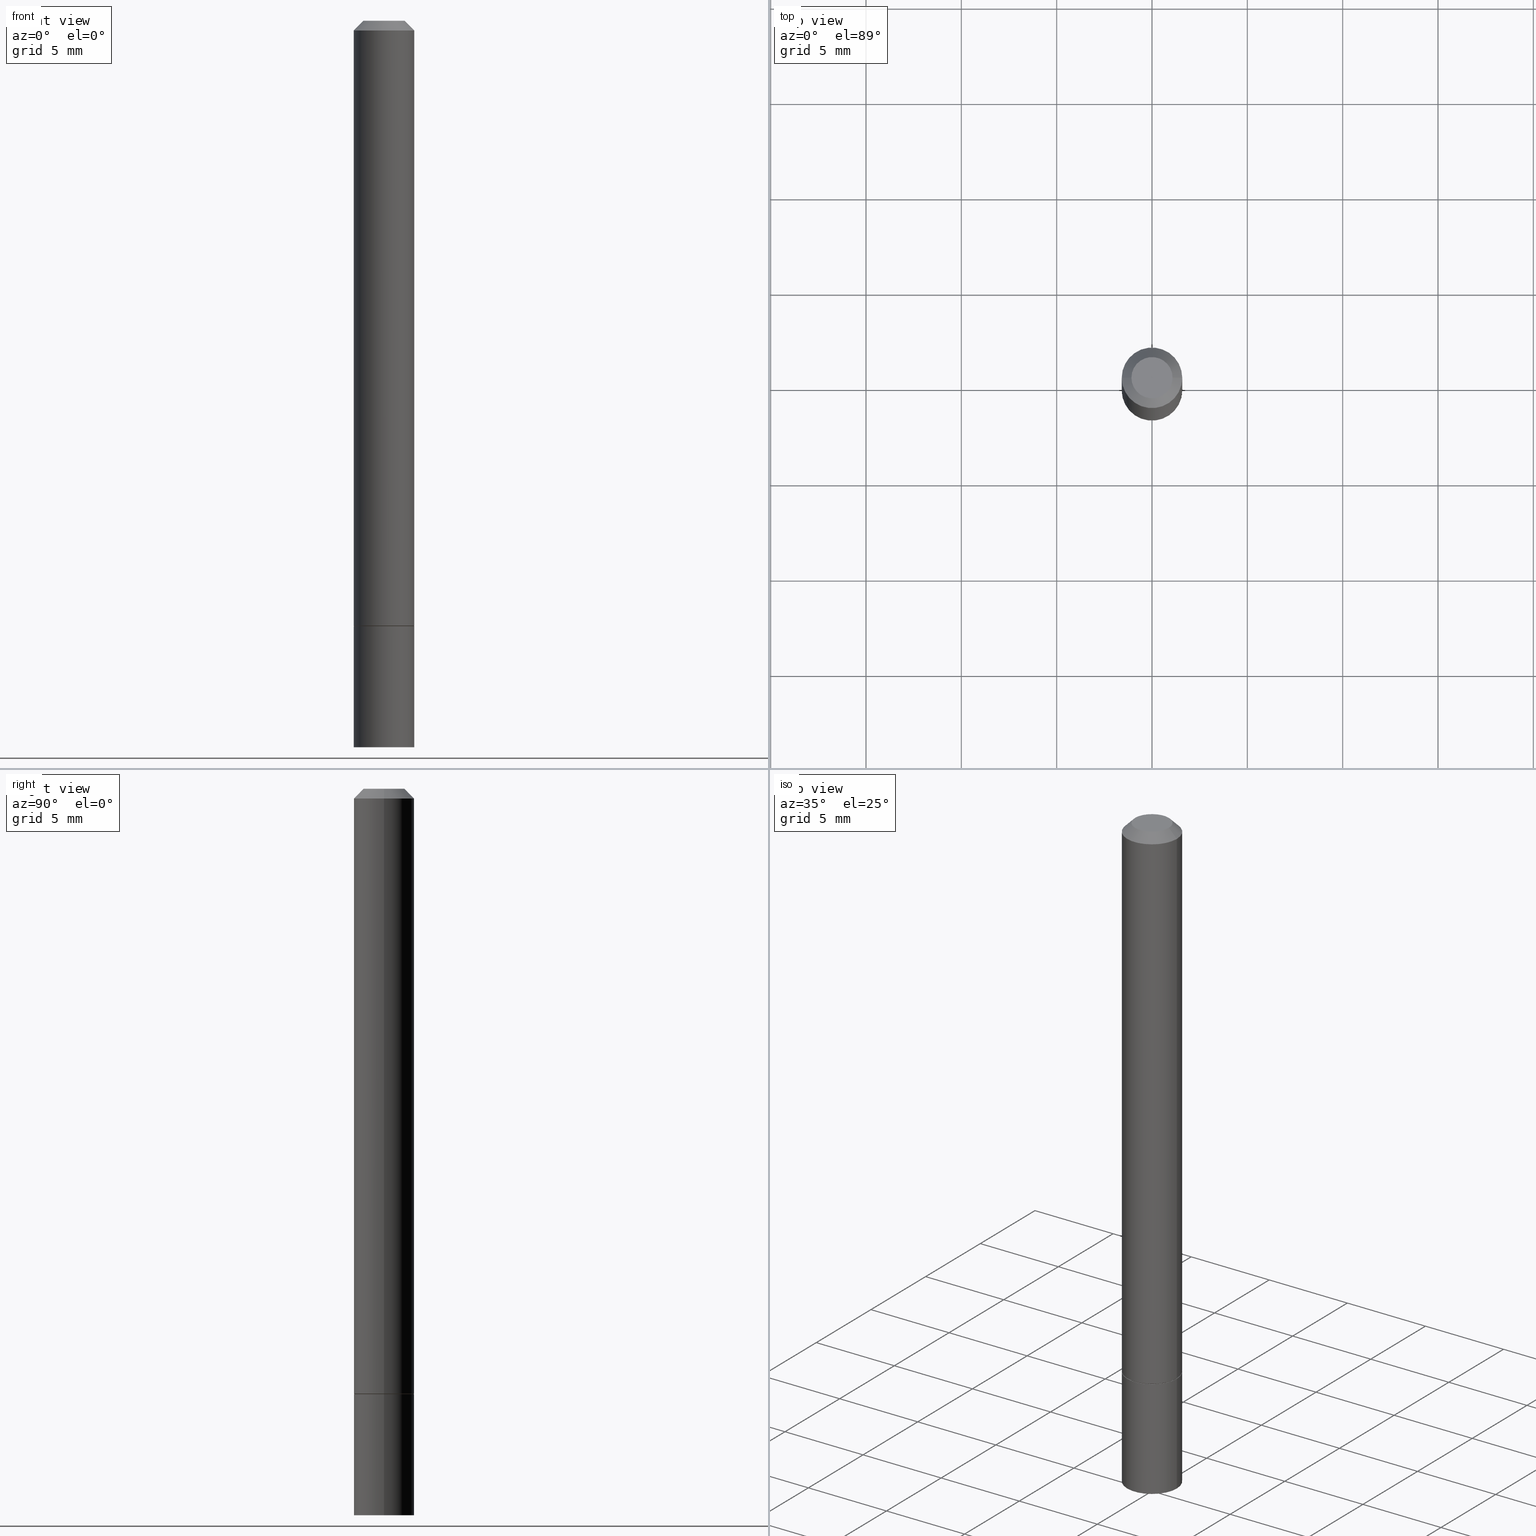
[diagram: canonical four-view strip — front | top / right | iso, engineering-drawing reading convention]
A machine part, canonical four-view strip (front | top / right | iso — engineering-drawing reading convention). The complete STEP part file that produces these views, byte-faithful:
ISO-10303-21;
HEADER;
FILE_DESCRIPTION (( 'STEP AP203' ),
    '1' );
FILE_NAME ('31253.STEP',
    '2024-02-27T12:57:29',
    ( '' ),
    ( '' ),
    'SwSTEP 2.0',
    'SolidWorks 2023',
    '' );
FILE_SCHEMA (( 'CONFIG_CONTROL_DESIGN' ));
ENDSEC;

DATA;
#1 = DIRECTION ( 'NONE',  ( 1.000000000000000000, -6.982962677686267499E-15, 4.876176775795935793E-29 ) ) ;
#2 = CONICAL_SURFACE ( 'NONE', #146, 0.06249999999999995143, 0.7853981633974460586 ) ;
#3 = CALENDAR_DATE ( 2024, 27, 2 ) ;
#4 = APPROVAL_STATUS ( 'not_yet_approved' ) ;
#5 = VECTOR ( 'NONE', #136, 39.37007874015748143 ) ;
#6 = EDGE_CURVE ( 'NONE', #63, #87, #224, .T. ) ;
#7 = APPROVAL_ROLE ( '' ) ;
#8 = ORIENTED_EDGE ( 'NONE', *, *, #59, .F. ) ;
#9 = SECURITY_CLASSIFICATION ( '', '', #285 ) ;
#10 = ORIENTED_EDGE ( 'NONE', *, *, #168, .T. ) ;
#11 = VECTOR ( 'NONE', #298, 39.37007874015748143 ) ;
#12 = DIRECTION ( 'NONE',  ( -2.445468806185136877E-29, 3.491481338843145188E-15, 1.000000000000000000 ) ) ;
#13 = ORIENTED_EDGE ( 'NONE', *, *, #263, .T. ) ;
#14 = LINE ( 'NONE', #132, #194 ) ;
#15 = CARTESIAN_POINT ( 'NONE',  ( 0.000000000000000000, 0.000000000000000000, 0.000000000000000000 ) ) ;
#16 = ORIENTED_EDGE ( 'NONE', *, *, #110, .T. ) ;
#17 = CARTESIAN_POINT ( 'NONE',  ( 0.06150000000000001299, -4.793803878231636549E-15, -1.249999999999999778 ) ) ;
#18 = VERTEX_POINT ( 'NONE', #39 ) ;
#19 = DIRECTION ( 'NONE',  ( 2.438088387897960049E-29, -3.491481338843145188E-15, -1.000000000000000000 ) ) ;
#20 = DIRECTION ( 'NONE',  ( 0.7071067811865459074, -7.319954787623249734E-15, -0.7071067811865491270 ) ) ;
#21 = DIRECTION ( 'NONE',  ( -2.445468806185136597E-29, 3.491481338843145583E-15, 1.000000000000000000 ) ) ;
#22 = CARTESIAN_POINT ( 'NONE',  ( 9.394662729016977403E-46, -1.341308853342402453E-31, -3.841661241090370459E-17 ) ) ;
#23 = DIRECTION ( 'NONE',  ( -2.445468806185136597E-29, 3.491481338843145583E-15, 1.000000000000000000 ) ) ;
#24 = EDGE_CURVE ( 'NONE', #43, #265, #152, .T. ) ;
#25 = APPROVAL_PERSON_ORGANIZATION ( #365, #213, #221 ) ;
#26 = AXIS2_PLACEMENT_3D ( 'NONE', #76, #352, #242 ) ;
#27 = DIRECTION ( 'NONE',  ( 1.000000000000000000, -6.982962677686261189E-15, 0.000000000000000000 ) ) ;
#28 = ADVANCED_FACE ( 'NONE', ( #161 ), #189, .T. ) ;
#29 = COORDINATED_UNIVERSAL_TIME_OFFSET ( 5, 0, .BEHIND. ) ;
#30 = APPROVAL_DATE_TIME ( #83, #325 ) ;
#31 = ORIENTED_EDGE ( 'NONE', *, *, #93, .F. ) ;
#32 = CC_DESIGN_PERSON_AND_ORGANIZATION_ASSIGNMENT ( #258, #90, ( #9 ) ) ;
#33 = ORIENTED_EDGE ( 'NONE', *, *, #142, .F. ) ;
#34 = COORDINATED_UNIVERSAL_TIME_OFFSET ( 5, 0, .BEHIND. ) ;
#35 = ORIENTED_EDGE ( 'NONE', *, *, #296, .F. ) ;
#36 = ORIENTED_EDGE ( 'NONE', *, *, #253, .T. ) ;
#37 = DIRECTION ( 'NONE',  ( 1.000000000000000000, -6.982962677686268288E-15, 0.000000000000000000 ) ) ;
#38 = PRODUCT_DEFINITION_FORMATION_WITH_SPECIFIED_SOURCE ( 'ANY', '', #79, .NOT_KNOWN. ) ;
#39 = CARTESIAN_POINT ( 'NONE',  ( -0.06249999999999995143, 3.666055405785282233E-16, -0.02000000000000005246 ) ) ;
#40 = AXIS2_PLACEMENT_3D ( 'NONE', #322, #237, #243 ) ;
#41 = DIRECTION ( 'NONE',  ( -2.445468806185136597E-29, 3.491481338843145583E-15, 1.000000000000000000 ) ) ;
#42 = PLANE ( 'NONE',  #202 ) ;
#43 = VERTEX_POINT ( 'NONE', #141 ) ;
#44 = ADVANCED_FACE ( 'NONE', ( #248 ), #162, .T. ) ;
#45 = CIRCLE ( 'NONE', #165, 0.06250000000000001388 ) ;
#46 = AXIS2_PLACEMENT_3D ( 'NONE', #133, #164, #334 ) ;
#47 = DIRECTION ( 'NONE',  ( -2.445468806185136597E-29, 3.491481338843145583E-15, 1.000000000000000000 ) ) ;
#48 = FACE_OUTER_BOUND ( 'NONE', #148, .T. ) ;
#49 = VERTEX_POINT ( 'NONE', #150 ) ;
#50 = CARTESIAN_POINT ( 'NONE',  ( 4.890937612370285420E-31, -6.982962677686308865E-17, -0.02000000000000005246 ) ) ;
#51 = DIRECTION ( 'NONE',  ( 1.000000000000000000, -6.982962677686265922E-15, 4.876176775795935793E-29 ) ) ;
#52 = DIRECTION ( 'NONE',  ( -2.445468806185136597E-29, 3.491481338843145583E-15, 1.000000000000000000 ) ) ;
#53 = CARTESIAN_POINT ( 'NONE',  ( -0.06250000000000008327, -1.771255699645910018E-15, -1.248999999999999888 ) ) ;
#54 = LINE ( 'NONE', #99, #5 ) ;
#55 = EDGE_CURVE ( 'NONE', #43, #323, #95, .T. ) ;
#56 = DIRECTION ( 'NONE',  ( 1.000000000000000000, -6.982962677686267499E-15, 4.876176775795935793E-29 ) ) ;
#57 = APPLICATION_CONTEXT ( 'configuration controlled 3d designs of mechanical parts and assemblies' ) ;
#58 = DIRECTION ( 'NONE',  ( -2.445468806185136597E-29, 3.491481338843145583E-15, 1.000000000000000000 ) ) ;
#59 = EDGE_CURVE ( 'NONE', #87, #265, #236, .T. ) ;
#60 = CARTESIAN_POINT ( 'NONE',  ( -0.04250000000000002387, 3.316907271900973138E-16, -3.841661241090589861E-17 ) ) ;
#61 = CIRCLE ( 'NONE', #175, 0.06150000000000001299 ) ;
#62 = PERSON_AND_ORGANIZATION ( #155, #92 ) ;
#63 = VERTEX_POINT ( 'NONE', #53 ) ;
#64 = CARTESIAN_POINT ( 'NONE',  ( 0.06249999999999995143, -4.986107516375834292E-16, -0.02000000000000005246 ) ) ;
#65 = ORIENTED_EDGE ( 'NONE', *, *, #204, .F. ) ;
#66 = DIRECTION ( 'NONE',  ( -1.000000000000000000, 6.982962677686265922E-15, -4.876176775795935793E-29 ) ) ;
#67 = LOCAL_TIME ( 7, 57, 29.00000000000000000, #121 ) ;
#68 = ORIENTED_EDGE ( 'NONE', *, *, #204, .T. ) ;
#69 = AXIS2_PLACEMENT_3D ( 'NONE', #98, #156, #188 ) ;
#70 = CARTESIAN_POINT ( 'NONE',  ( 4.364351673554284500E-16, 0.06249999999999478195, -1.500000000000000444 ) ) ;
#71 = CARTESIAN_POINT ( 'NONE',  ( 0.000000000000000000, 0.000000000000000000, 0.000000000000000000 ) ) ;
#72 = ORIENTED_EDGE ( 'NONE', *, *, #97, .F. ) ;
#73 = FACE_OUTER_BOUND ( 'NONE', #245, .T. ) ;
#74 = DIRECTION ( 'NONE',  ( 1.000000000000000000, -6.982962677686266711E-15, 0.000000000000000000 ) ) ;
#75 = CARTESIAN_POINT ( 'NONE',  ( 3.054390538925235704E-29, -4.360860192215088675E-15, -1.248999999999999888 ) ) ;
#76 = CARTESIAN_POINT ( 'NONE',  ( 3.056836007731420185E-29, -4.364351673553931682E-15, -1.249999999999999778 ) ) ;
#77 = DATE_AND_TIME ( #338, #288 ) ;
#78 = DIRECTION ( 'NONE',  ( 0.000000000000000000, 0.000000000000000000, 1.000000000000000000 ) ) ;
#79 = PRODUCT ( '31253', '31253', '', ( #169 ) ) ;
#80 =( LENGTH_UNIT ( ) NAMED_UNIT ( * ) SI_UNIT ( $, .METRE. ) );
#81 = AXIS2_PLACEMENT_3D ( 'NONE', #111, #261, #37 ) ;
#82 =( NAMED_UNIT ( * ) PLANE_ANGLE_UNIT ( ) SI_UNIT ( $, .RADIAN. ) );
#83 = DATE_AND_TIME ( #174, #227 ) ;
#84 = PERSON_AND_ORGANIZATION ( #155, #92 ) ;
#85 = ADVANCED_FACE ( 'NONE', ( #101 ), #2, .T. ) ;
#86 = CC_DESIGN_SECURITY_CLASSIFICATION ( #9, ( #38 ) ) ;
#87 = VERTEX_POINT ( 'NONE', #181 ) ;
#88 = PERSON_AND_ORGANIZATION_ROLE ( 'creator' ) ;
#89 = UNCERTAINTY_MEASURE_WITH_UNIT (LENGTH_MEASURE( 1.000000000000000082E-05 ), #115, 'distance_accuracy_value', 'NONE');
#90 = PERSON_AND_ORGANIZATION_ROLE ( 'classification_officer' ) ;
#91 = EDGE_CURVE ( 'NONE', #63, #18, #130, .T. ) ;
#92 = ORGANIZATION ( 'UNSPECIFIED', 'UNSPECIFIED', '' ) ;
#93 = EDGE_CURVE ( 'NONE', #49, #214, #61, .T. ) ;
#94 = ORIENTED_EDGE ( 'NONE', *, *, #195, .T. ) ;
#95 = CIRCLE ( 'NONE', #119, 0.04250000000000002387 ) ;
#96 = ORIENTED_EDGE ( 'NONE', *, *, #24, .F. ) ;
#97 = EDGE_CURVE ( 'NONE', #323, #18, #324, .T. ) ;
#98 = CARTESIAN_POINT ( 'NONE',  ( 3.668203209277704895E-29, -5.237222008264718177E-15, -1.500000000000000222 ) ) ;
#99 = CARTESIAN_POINT ( 'NONE',  ( -0.06250000000000001388, 4.440892098500627148E-16, -3.074334431409317165E-30 ) ) ;
#100 = ORIENTED_EDGE ( 'NONE', *, *, #287, .F. ) ;
#101 = FACE_OUTER_BOUND ( 'NONE', #126, .T. ) ;
#102 = PRODUCT_DEFINITION ( 'UNKNOWN', '', #38, #337 ) ;
#103 = CYLINDRICAL_SURFACE ( 'NONE', #219, 0.06250000000000001388 ) ;
#104 = CIRCLE ( 'NONE', #255, 0.06250000000000001388 ) ;
#105 = ORIENTED_EDGE ( 'NONE', *, *, #168, .F. ) ;
#106 = CARTESIAN_POINT ( 'NONE',  ( -0.06250000000000001388, -4.356697631059263102E-15, -1.500000000000000222 ) ) ;
#107 = CYLINDRICAL_SURFACE ( 'NONE', #230, 0.06250000000000001388 ) ;
#108 = ORIENTED_EDGE ( 'NONE', *, *, #296, .T. ) ;
#109 = FACE_OUTER_BOUND ( 'NONE', #231, .T. ) ;
#110 = EDGE_CURVE ( 'NONE', #177, #359, #185, .T. ) ;
#111 = CARTESIAN_POINT ( 'NONE',  ( 3.056836007731420185E-29, -4.364351673553931682E-15, -1.249999999999999778 ) ) ;
#112 = APPROVAL_STATUS ( 'not_yet_approved' ) ;
#113 = VECTOR ( 'NONE', #20, 39.37007874015748143 ) ;
#114 = CARTESIAN_POINT ( 'NONE',  ( 2.967759138016664535E-16, 0.04250000000000002387, -1.675962631062856399E-16 ) ) ;
#115 =( CONVERSION_BASED_UNIT ( 'INCH', #341 ) LENGTH_UNIT ( ) NAMED_UNIT ( #176 ) );
#116 = PRODUCT_DEFINITION_SHAPE ( 'NONE', 'NONE',  #102 ) ;
#117 = LOCAL_TIME ( 7, 57, 29.00000000000000000, #29 ) ;
#118 = DIRECTION ( 'NONE',  ( 1.000000000000000000, -6.982962677686269077E-15, 0.000000000000000000 ) ) ;
#119 = AXIS2_PLACEMENT_3D ( 'NONE', #191, #209, #153 ) ;
#120 = COORDINATED_UNIVERSAL_TIME_OFFSET ( 5, 0, .BEHIND. ) ;
#121 = COORDINATED_UNIVERSAL_TIME_OFFSET ( 5, 0, .BEHIND. ) ;
#122 = CC_DESIGN_PERSON_AND_ORGANIZATION_ASSIGNMENT ( #124, #88, ( #38 ) ) ;
#123 = DATE_AND_TIME ( #200, #276 ) ;
#124 = PERSON_AND_ORGANIZATION ( #155, #92 ) ;
#125 = ADVANCED_FACE ( 'NONE', ( #109 ), #138, .T. ) ;
#126 = EDGE_LOOP ( 'NONE', ( #96, #100, #329, #303 ) ) ;
#127 = CIRCLE ( 'NONE', #284, 0.06150000000000001299 ) ;
#128 = EDGE_LOOP ( 'NONE', ( #262, #184 ) ) ;
#129 = AXIS2_PLACEMENT_3D ( 'NONE', #330, #47, #335 ) ;
#130 = LINE ( 'NONE', #274, #290 ) ;
#131 = ORIENTED_EDGE ( 'NONE', *, *, #182, .F. ) ;
#132 = CARTESIAN_POINT ( 'NONE',  ( 0.06150000000000001299, -4.793803878231636549E-15, -1.249999999999999778 ) ) ;
#133 = CARTESIAN_POINT ( 'NONE',  ( 4.364351673554222871E-16, 0.06249999999999565625, -1.250000000000000222 ) ) ;
#134 = ORIENTED_EDGE ( 'NONE', *, *, #348, .T. ) ;
#135 = CARTESIAN_POINT ( 'NONE',  ( 0.06250000000000001388, -5.673657175620109846E-15, -1.500000000000000222 ) ) ;
#136 = DIRECTION ( 'NONE',  ( -2.445468806185136877E-29, 3.491481338843145188E-15, 1.000000000000000000 ) ) ;
#137 = ORIENTED_EDGE ( 'NONE', *, *, #6, .T. ) ;
#138 = CONICAL_SURFACE ( 'NONE', #26, 0.06150000000000001299, 0.7853981633975849475 ) ;
#139 = DIRECTION ( 'NONE',  ( -1.000000000000000000, 6.982962677686266711E-15, 0.000000000000000000 ) ) ;
#140 = DIRECTION ( 'NONE',  ( -2.445468806185136597E-29, 3.491481338843145583E-15, 1.000000000000000000 ) ) ;
#141 = CARTESIAN_POINT ( 'NONE',  ( 0.04250000000000002387, -3.950909582714369417E-16, -3.841661241090128254E-17 ) ) ;
#142 = EDGE_CURVE ( 'NONE', #18, #265, #286, .T. ) ;
#143 = PERSON_AND_ORGANIZATION_ROLE ( 'creator' ) ;
#144 = AXIS2_PLACEMENT_3D ( 'NONE', #157, #295, #74 ) ;
#145 = CYLINDRICAL_SURFACE ( 'NONE', #232, 0.06250000000000001388 ) ;
#146 = AXIS2_PLACEMENT_3D ( 'NONE', #50, #163, #207 ) ;
#147 =( GEOMETRIC_REPRESENTATION_CONTEXT ( 3 ) GLOBAL_UNCERTAINTY_ASSIGNED_CONTEXT ( ( #89 ) ) GLOBAL_UNIT_ASSIGNED_CONTEXT ( ( #115, #82, #222 ) ) REPRESENTATION_CONTEXT ( 'NONE', 'WORKASPACE' ) );
#148 = EDGE_LOOP ( 'NONE', ( #10, #36, #350, #268 ) ) ;
#149 = VERTEX_POINT ( 'NONE', #178 ) ;
#150 = CARTESIAN_POINT ( 'NONE',  ( -0.06150000000000001299, -3.922069436713247672E-15, -1.249999999999999778 ) ) ;
#151 = AXIS2_PLACEMENT_3D ( 'NONE', #159, #269, #139 ) ;
#152 = LINE ( 'NONE', #273, #113 ) ;
#153 = DIRECTION ( 'NONE',  ( 1.000000000000000000, -6.982962677686267499E-15, 4.870577812114081924E-29 ) ) ;
#154 = ORIENTED_EDGE ( 'NONE', *, *, #339, .F. ) ;
#155 = PERSON ( 'UNSPECIFIED', 'UNSPECIFIED', 'UNSPECIFIED', ('UNSPECIFIED'), ('UNSPECIFIED'), ('UNSPECIFIED') ) ;
#156 = DIRECTION ( 'NONE',  ( -2.445468806185136597E-29, 3.491481338843145583E-15, 1.000000000000000000 ) ) ;
#157 = CARTESIAN_POINT ( 'NONE',  ( 4.890937612370285420E-31, -6.982962677686308865E-17, -0.02000000000000005246 ) ) ;
#158 = EDGE_LOOP ( 'NONE', ( #94, #228, #321, #65 ) ) ;
#159 = CARTESIAN_POINT ( 'NONE',  ( 4.890937612370285420E-31, -6.982962677686308865E-17, -0.02000000000000005246 ) ) ;
#160 = DIRECTION ( 'NONE',  ( -2.445468806185136597E-29, 3.491481338843145583E-15, 1.000000000000000000 ) ) ;
#161 = FACE_OUTER_BOUND ( 'NONE', #203, .T. ) ;
#162 = CONICAL_SURFACE ( 'NONE', #81, 0.06150000000000001299, 0.7853981633975849475 ) ;
#163 = DIRECTION ( 'NONE',  ( 2.445468806185136597E-29, -3.491481338843145583E-15, -1.000000000000000000 ) ) ;
#164 = DIRECTION ( 'NONE',  ( 2.438088387897960049E-29, -3.491481338843145188E-15, -1.000000000000000000 ) ) ;
#165 = AXIS2_PLACEMENT_3D ( 'NONE', #271, #140, #210 ) ;
#166 = CARTESIAN_POINT ( 'NONE',  ( 3.056836007731421306E-29, -4.364351673553932471E-15, -1.250000000000000000 ) ) ;
#167 = CARTESIAN_POINT ( 'NONE',  ( 3.668203209277704895E-29, -5.237222008264718177E-15, -1.500000000000000222 ) ) ;
#168 = EDGE_CURVE ( 'NONE', #177, #206, #257, .T. ) ;
#169 = MECHANICAL_CONTEXT ( 'NONE', #57, 'mechanical' ) ;
#170 = CARTESIAN_POINT ( 'NONE',  ( 0.06250000000000001388, -4.800786840909324141E-15, -1.250000000000000000 ) ) ;
#171 = PERSON_AND_ORGANIZATION_ROLE ( 'design_owner' ) ;
#172 = ADVANCED_FACE ( 'NONE', ( #294 ), #304, .T. ) ;
#173 = AXIS2_PLACEMENT_3D ( 'NONE', #114, #275, #282 ) ;
#174 = CALENDAR_DATE ( 2024, 27, 2 ) ;
#175 = AXIS2_PLACEMENT_3D ( 'NONE', #212, #21, #327 ) ;
#176 = DIMENSIONAL_EXPONENTS ( 1.000000000000000000, 0.000000000000000000, 0.000000000000000000, 0.000000000000000000, 0.000000000000000000, 0.000000000000000000, 0.000000000000000000 ) ;
#177 = VERTEX_POINT ( 'NONE', #135 ) ;
#178 = CARTESIAN_POINT ( 'NONE',  ( -0.06250000000000001388, -4.356697631059263102E-15, -1.250000000000000000 ) ) ;
#179 = DIRECTION ( 'NONE',  ( 1.000000000000000000, -6.982962677686267499E-15, 4.870577812114081924E-29 ) ) ;
#180 = ORIENTED_EDGE ( 'NONE', *, *, #234, .T. ) ;
#181 = CARTESIAN_POINT ( 'NONE',  ( 0.06250000000000008327, -4.797295359570480345E-15, -1.248999999999999888 ) ) ;
#182 = EDGE_CURVE ( 'NONE', #49, #63, #266, .T. ) ;
#183 = AXIS2_PLACEMENT_3D ( 'NONE', #305, #52, #358 ) ;
#184 = ORIENTED_EDGE ( 'NONE', *, *, #55, .T. ) ;
#185 = LINE ( 'NONE', #302, #244 ) ;
#186 = DIRECTION ( 'NONE',  ( -2.445468806185136597E-29, 3.491481338843145583E-15, 1.000000000000000000 ) ) ;
#187 = ORIENTED_EDGE ( 'NONE', *, *, #6, .F. ) ;
#188 = DIRECTION ( 'NONE',  ( 1.000000000000000000, -6.982962677686261189E-15, 0.000000000000000000 ) ) ;
#189 = CYLINDRICAL_SURFACE ( 'NONE', #183, 0.06250000000000001388 ) ;
#190 = CC_DESIGN_DATE_AND_TIME_ASSIGNMENT ( #77, #192, ( #102 ) ) ;
#191 = CARTESIAN_POINT ( 'NONE',  ( 9.394662729016977403E-46, -1.341308853342402453E-31, -3.841661241090370459E-17 ) ) ;
#192 = DATE_TIME_ROLE ( 'creation_date' ) ;
#193 = CALENDAR_DATE ( 2024, 27, 2 ) ;
#194 = VECTOR ( 'NONE', #240, 39.37007874015748143 ) ;
#195 = EDGE_CURVE ( 'NONE', #214, #49, #127, .T. ) ;
#196 = DATE_TIME_ROLE ( 'classification_date' ) ;
#197 = CIRCLE ( 'NONE', #40, 0.06250000000000008327 ) ;
#198 = DATE_AND_TIME ( #3, #67 ) ;
#199 = APPROVAL_DATE_TIME ( #123, #220 ) ;
#200 = CALENDAR_DATE ( 2024, 27, 2 ) ;
#201 = APPROVAL_PERSON_ORGANIZATION ( #62, #220, #346 ) ;
#202 = AXIS2_PLACEMENT_3D ( 'NONE', #205, #307, #51 ) ;
#203 = EDGE_LOOP ( 'NONE', ( #208, #297, #16, #35 ) ) ;
#204 = EDGE_CURVE ( 'NONE', #214, #87, #14, .T. ) ;
#205 = CARTESIAN_POINT ( 'NONE',  ( 3.056836007731421306E-29, -4.364351673553932471E-15, -1.250000000000000000 ) ) ;
#206 = VERTEX_POINT ( 'NONE', #106 ) ;
#207 = DIRECTION ( 'NONE',  ( -1.000000000000000000, 6.982962677686266711E-15, 0.000000000000000000 ) ) ;
#208 = ORIENTED_EDGE ( 'NONE', *, *, #253, .F. ) ;
#209 = DIRECTION ( 'NONE',  ( -2.445468806185136597E-29, 3.491481338843145583E-15, 1.000000000000000000 ) ) ;
#210 = DIRECTION ( 'NONE',  ( 1.000000000000000000, -6.982962677686269077E-15, 0.000000000000000000 ) ) ;
#211 = EDGE_LOOP ( 'NONE', ( #105, #154 ) ) ;
#212 = CARTESIAN_POINT ( 'NONE',  ( 3.056836007731420185E-29, -4.364351673553931682E-15, -1.249999999999999778 ) ) ;
#213 = APPROVAL ( #112, 'UNSPECIFIED' ) ;
#214 = VERTEX_POINT ( 'NONE', #17 ) ;
#215 = CARTESIAN_POINT ( 'NONE',  ( -0.06150000000000001299, -3.927367891061469286E-15, -1.249999999999999778 ) ) ;
#216 = DIRECTION ( 'NONE',  ( -2.445468806185136597E-29, 3.491481338843145583E-15, 1.000000000000000000 ) ) ;
#217 = DIRECTION ( 'NONE',  ( -2.445468806185136877E-29, 3.491481338843145188E-15, 1.000000000000000000 ) ) ;
#218 = DIRECTION ( 'NONE',  ( 1.000000000000000000, 0.000000000000000000, 0.000000000000000000 ) ) ;
#219 = AXIS2_PLACEMENT_3D ( 'NONE', #71, #186, #56 ) ;
#220 = APPROVAL ( #229, 'UNSPECIFIED' ) ;
#221 = APPROVAL_ROLE ( '' ) ;
#222 =( NAMED_UNIT ( * ) SI_UNIT ( $, .STERADIAN. ) SOLID_ANGLE_UNIT ( ) );
#223 = ADVANCED_FACE ( 'NONE', ( #73 ), #315, .T. ) ;
#224 = CIRCLE ( 'NONE', #299, 0.06250000000000008327 ) ;
#225 = ADVANCED_FACE ( 'NONE', ( #246 ), #42, .F. ) ;
#226 = SHAPE_DEFINITION_REPRESENTATION ( #116, #254 ) ;
#227 = LOCAL_TIME ( 7, 57, 29.00000000000000000, #34 ) ;
#228 = ORIENTED_EDGE ( 'NONE', *, *, #182, .T. ) ;
#229 = APPROVAL_STATUS ( 'not_yet_approved' ) ;
#230 = AXIS2_PLACEMENT_3D ( 'NONE', #15, #216, #267 ) ;
#231 = EDGE_LOOP ( 'NONE', ( #131, #238, #68, #187 ) ) ;
#232 = AXIS2_PLACEMENT_3D ( 'NONE', #279, #23, #1 ) ;
#233 = CLOSED_SHELL ( 'NONE', ( #44, #311, #223, #85, #316, #125, #225, #347 ) ) ;
#234 = EDGE_CURVE ( 'NONE', #265, #18, #278, .T. ) ;
#235 = ORIENTED_EDGE ( 'NONE', *, *, #234, .F. ) ;
#236 = LINE ( 'NONE', #306, #318 ) ;
#237 = DIRECTION ( 'NONE',  ( -2.445468806185136597E-29, 3.491481338843145583E-15, 1.000000000000000000 ) ) ;
#238 = ORIENTED_EDGE ( 'NONE', *, *, #93, .T. ) ;
#239 = ADVANCED_FACE ( 'NONE', ( #48 ), #107, .T. ) ;
#240 = DIRECTION ( 'NONE',  ( 0.7071067811866441621, -2.468850131083269169E-15, 0.7071067811864508723 ) ) ;
#241 = EDGE_LOOP ( 'NONE', ( #260, #31 ) ) ;
#242 = DIRECTION ( 'NONE',  ( 1.000000000000000000, -6.982962677686268288E-15, 0.000000000000000000 ) ) ;
#243 = DIRECTION ( 'NONE',  ( 1.000000000000000000, -6.982962677686261189E-15, 0.000000000000000000 ) ) ;
#244 = VECTOR ( 'NONE', #217, 39.37007874015748143 ) ;
#245 = EDGE_LOOP ( 'NONE', ( #326, #345, #180, #72 ) ) ;
#246 = FACE_OUTER_BOUND ( 'NONE', #241, .T. ) ;
#247 = FACE_OUTER_BOUND ( 'NONE', #301, .T. ) ;
#248 = FACE_OUTER_BOUND ( 'NONE', #158, .T. ) ;
#249 = PERSON_AND_ORGANIZATION ( #155, #92 ) ;
#250 = AXIS2_PLACEMENT_3D ( 'NONE', #70, #19, #66 ) ;
#251 = FACE_OUTER_BOUND ( 'NONE', #128, .T. ) ;
#252 = FACE_OUTER_BOUND ( 'NONE', #293, .T. ) ;
#253 = EDGE_CURVE ( 'NONE', #206, #149, #54, .T. ) ;
#254 = ADVANCED_BREP_SHAPE_REPRESENTATION ( '31253', ( #277, #280, #357 ), #147 ) ;
#255 = AXIS2_PLACEMENT_3D ( 'NONE', #167, #314, #27 ) ;
#256 = CC_DESIGN_DATE_AND_TIME_ASSIGNMENT ( #198, #196, ( #9 ) ) ;
#257 = CIRCLE ( 'NONE', #69, 0.06250000000000001388 ) ;
#258 = PERSON_AND_ORGANIZATION ( #155, #92 ) ;
#259 = DIRECTION ( 'NONE',  ( 1.000000000000000000, -6.982962677686261189E-15, 0.000000000000000000 ) ) ;
#260 = ORIENTED_EDGE ( 'NONE', *, *, #195, .F. ) ;
#261 = DIRECTION ( 'NONE',  ( -2.445468806185136597E-29, 3.491481338843145583E-15, 1.000000000000000000 ) ) ;
#262 = ORIENTED_EDGE ( 'NONE', *, *, #287, .T. ) ;
#263 = EDGE_CURVE ( 'NONE', #87, #63, #197, .T. ) ;
#264 = DIRECTION ( 'NONE',  ( 1.000000000000000000, -6.982962677686268288E-15, 0.000000000000000000 ) ) ;
#265 = VERTEX_POINT ( 'NONE', #64 ) ;
#266 = LINE ( 'NONE', #215, #11 ) ;
#267 = DIRECTION ( 'NONE',  ( 1.000000000000000000, -6.982962677686267499E-15, 4.876176775795935793E-29 ) ) ;
#268 = ORIENTED_EDGE ( 'NONE', *, *, #110, .F. ) ;
#269 = DIRECTION ( 'NONE',  ( 2.445468806185136597E-29, -3.491481338843145583E-15, -1.000000000000000000 ) ) ;
#270 = CC_DESIGN_APPROVAL ( #213, ( #102 ) ) ;
#271 = CARTESIAN_POINT ( 'NONE',  ( 3.056836007731421306E-29, -4.364351673553932471E-15, -1.250000000000000000 ) ) ;
#272 = VECTOR ( 'NONE', #360, 39.37007874015748143 ) ;
#273 = CARTESIAN_POINT ( 'NONE',  ( 0.06249999999999995143, -4.986107516375834292E-16, -0.02000000000000005246 ) ) ;
#274 = CARTESIAN_POINT ( 'NONE',  ( -0.06250000000000001388, 4.440892098500627148E-16, -3.074334431409317165E-30 ) ) ;
#275 = DIRECTION ( 'NONE',  ( 2.438088387897960049E-29, -3.491481338843145188E-15, -1.000000000000000000 ) ) ;
#276 = LOCAL_TIME ( 7, 57, 29.00000000000000000, #120 ) ;
#277 = MANIFOLD_SOLID_BREP ( 'Body-Move/Copy2[1]', #328 ) ;
#278 = CIRCLE ( 'NONE', #144, 0.06249999999999995143 ) ;
#279 = CARTESIAN_POINT ( 'NONE',  ( 0.000000000000000000, 0.000000000000000000, 0.000000000000000000 ) ) ;
#280 = MANIFOLD_SOLID_BREP ( 'Body-Move/Copy2[2]', #233 ) ;
#281 = CC_DESIGN_PERSON_AND_ORGANIZATION_ASSIGNMENT ( #249, #143, ( #102 ) ) ;
#282 = DIRECTION ( 'NONE',  ( -1.000000000000000000, 6.982962677686265922E-15, -4.876176775795935793E-29 ) ) ;
#283 = APPLICATION_PROTOCOL_DEFINITION ( 'international standard', 'config_control_design', 1994, #332 ) ;
#284 = AXIS2_PLACEMENT_3D ( 'NONE', #333, #41, #264 ) ;
#285 = SECURITY_CLASSIFICATION_LEVEL ( 'unclassified' ) ;
#286 = CIRCLE ( 'NONE', #129, 0.06249999999999995143 ) ;
#287 = EDGE_CURVE ( 'NONE', #323, #43, #319, .T. ) ;
#288 = LOCAL_TIME ( 7, 57, 29.00000000000000000, #364 ) ;
#289 = PERSON_AND_ORGANIZATION_ROLE ( 'design_supplier' ) ;
#290 = VECTOR ( 'NONE', #354, 39.37007874015748143 ) ;
#291 = DIRECTION ( 'NONE',  ( -2.445468806185136597E-29, 3.491481338843145583E-15, 1.000000000000000000 ) ) ;
#292 = CC_DESIGN_PERSON_AND_ORGANIZATION_ASSIGNMENT ( #84, #289, ( #38 ) ) ;
#293 = EDGE_LOOP ( 'NONE', ( #356, #137, #351, #33 ) ) ;
#294 = FACE_OUTER_BOUND ( 'NONE', #211, .T. ) ;
#295 = DIRECTION ( 'NONE',  ( -2.445468806185136597E-29, 3.491481338843145583E-15, 1.000000000000000000 ) ) ;
#296 = EDGE_CURVE ( 'NONE', #149, #359, #45, .T. ) ;
#297 = ORIENTED_EDGE ( 'NONE', *, *, #339, .T. ) ;
#298 = DIRECTION ( 'NONE',  ( -0.7071067811866441621, 7.493145998870704414E-15, 0.7071067811864508723 ) ) ;
#299 = AXIS2_PLACEMENT_3D ( 'NONE', #75, #291, #259 ) ;
#300 = CC_DESIGN_PERSON_AND_ORGANIZATION_ASSIGNMENT ( #343, #171, ( #79 ) ) ;
#301 = EDGE_LOOP ( 'NONE', ( #134, #108 ) ) ;
#302 = CARTESIAN_POINT ( 'NONE',  ( 0.06250000000000001388, -4.364351673553918173E-16, 3.047610484872460571E-30 ) ) ;
#303 = ORIENTED_EDGE ( 'NONE', *, *, #142, .T. ) ;
#304 = PLANE ( 'NONE',  #250 ) ;
#305 = CARTESIAN_POINT ( 'NONE',  ( 0.000000000000000000, 0.000000000000000000, 0.000000000000000000 ) ) ;
#306 = CARTESIAN_POINT ( 'NONE',  ( 0.06250000000000001388, -4.364351673553918173E-16, 3.047610484872460571E-30 ) ) ;
#307 = DIRECTION ( 'NONE',  ( -2.438088387897960049E-29, 3.491481338843145188E-15, 1.000000000000000000 ) ) ;
#308 = ADVANCED_FACE ( 'NONE', ( #247 ), #361, .F. ) ;
#309 = APPLICATION_PROTOCOL_DEFINITION ( 'international standard', 'config_control_design', 1994, #57 ) ;
#310 = APPROVAL_DATE_TIME ( #312, #213 ) ;
#311 = ADVANCED_FACE ( 'NONE', ( #355 ), #103, .T. ) ;
#312 = DATE_AND_TIME ( #193, #117 ) ;
#313 = APPROVAL_PERSON_ORGANIZATION ( #366, #325, #7 ) ;
#314 = DIRECTION ( 'NONE',  ( -2.445468806185136597E-29, 3.491481338843145583E-15, 1.000000000000000000 ) ) ;
#315 = CONICAL_SURFACE ( 'NONE', #151, 0.06249999999999995143, 0.7853981633974460586 ) ;
#316 = ADVANCED_FACE ( 'NONE', ( #252 ), #145, .T. ) ;
#317 = CC_DESIGN_APPROVAL ( #325, ( #38 ) ) ;
#318 = VECTOR ( 'NONE', #12, 39.37007874015748143 ) ;
#319 = CIRCLE ( 'NONE', #320, 0.04250000000000002387 ) ;
#320 = AXIS2_PLACEMENT_3D ( 'NONE', #22, #160, #179 ) ;
#321 = ORIENTED_EDGE ( 'NONE', *, *, #263, .F. ) ;
#322 = CARTESIAN_POINT ( 'NONE',  ( 3.054390538925235704E-29, -4.360860192215088675E-15, -1.248999999999999888 ) ) ;
#323 = VERTEX_POINT ( 'NONE', #60 ) ;
#324 = LINE ( 'NONE', #363, #272 ) ;
#325 = APPROVAL ( #4, 'UNSPECIFIED' ) ;
#326 = ORIENTED_EDGE ( 'NONE', *, *, #55, .F. ) ;
#327 = DIRECTION ( 'NONE',  ( 1.000000000000000000, -6.982962677686268288E-15, 0.000000000000000000 ) ) ;
#328 = CLOSED_SHELL ( 'NONE', ( #239, #172, #308, #28 ) ) ;
#329 = ORIENTED_EDGE ( 'NONE', *, *, #97, .T. ) ;
#330 = CARTESIAN_POINT ( 'NONE',  ( 4.890937612370285420E-31, -6.982962677686308865E-17, -0.02000000000000005246 ) ) ;
#331 = EDGE_LOOP ( 'NONE', ( #13, #353, #235, #8 ) ) ;
#332 = APPLICATION_CONTEXT ( 'configuration controlled 3d designs of mechanical parts and assemblies' ) ;
#333 = CARTESIAN_POINT ( 'NONE',  ( 3.056836007731420185E-29, -4.364351673553931682E-15, -1.249999999999999778 ) ) ;
#334 = DIRECTION ( 'NONE',  ( -1.000000000000000000, 6.982962677686265922E-15, -4.876176775795935793E-29 ) ) ;
#335 = DIRECTION ( 'NONE',  ( 1.000000000000000000, -6.982962677686266711E-15, 0.000000000000000000 ) ) ;
#336 = PLANE ( 'NONE',  #173 ) ;
#337 = DESIGN_CONTEXT ( 'detailed design', #332, 'design' ) ;
#338 = CALENDAR_DATE ( 2024, 27, 2 ) ;
#339 = EDGE_CURVE ( 'NONE', #206, #177, #104, .T. ) ;
#340 = CARTESIAN_POINT ( 'NONE',  ( 0.000000000000000000, 0.000000000000000000, 0.000000000000000000 ) ) ;
#341 = LENGTH_MEASURE_WITH_UNIT ( LENGTH_MEASURE( 0.02539999999999999897 ), #80 );
#342 = AXIS2_PLACEMENT_3D ( 'NONE', #166, #58, #118 ) ;
#343 = PERSON_AND_ORGANIZATION ( #155, #92 ) ;
#344 = CIRCLE ( 'NONE', #342, 0.06250000000000001388 ) ;
#345 = ORIENTED_EDGE ( 'NONE', *, *, #24, .T. ) ;
#346 = APPROVAL_ROLE ( '' ) ;
#347 = ADVANCED_FACE ( 'NONE', ( #251 ), #336, .F. ) ;
#348 = EDGE_CURVE ( 'NONE', #359, #149, #344, .T. ) ;
#349 = CC_DESIGN_APPROVAL ( #220, ( #9 ) ) ;
#350 = ORIENTED_EDGE ( 'NONE', *, *, #348, .F. ) ;
#351 = ORIENTED_EDGE ( 'NONE', *, *, #59, .T. ) ;
#352 = DIRECTION ( 'NONE',  ( -2.445468806185136597E-29, 3.491481338843145583E-15, 1.000000000000000000 ) ) ;
#353 = ORIENTED_EDGE ( 'NONE', *, *, #91, .T. ) ;
#354 = DIRECTION ( 'NONE',  ( -2.445468806185136877E-29, 3.491481338843145188E-15, 1.000000000000000000 ) ) ;
#355 = FACE_OUTER_BOUND ( 'NONE', #331, .T. ) ;
#356 = ORIENTED_EDGE ( 'NONE', *, *, #91, .F. ) ;
#357 = AXIS2_PLACEMENT_3D ( 'NONE', #340, #78, #218 ) ;
#358 = DIRECTION ( 'NONE',  ( 1.000000000000000000, -6.982962677686267499E-15, 4.876176775795935793E-29 ) ) ;
#359 = VERTEX_POINT ( 'NONE', #170 ) ;
#360 = DIRECTION ( 'NONE',  ( -0.7071067811865459074, 2.468850131082240100E-15, -0.7071067811865491270 ) ) ;
#361 = PLANE ( 'NONE',  #46 ) ;
#362 = PRODUCT_RELATED_PRODUCT_CATEGORY ( 'detail', '', ( #79 ) ) ;
#363 = CARTESIAN_POINT ( 'NONE',  ( -0.06249999999999995143, 3.666055405785282233E-16, -0.02000000000000005246 ) ) ;
#364 = COORDINATED_UNIVERSAL_TIME_OFFSET ( 5, 0, .BEHIND. ) ;
#365 = PERSON_AND_ORGANIZATION ( #155, #92 ) ;
#366 = PERSON_AND_ORGANIZATION ( #155, #92 ) ;
ENDSEC;
END-ISO-10303-21;
